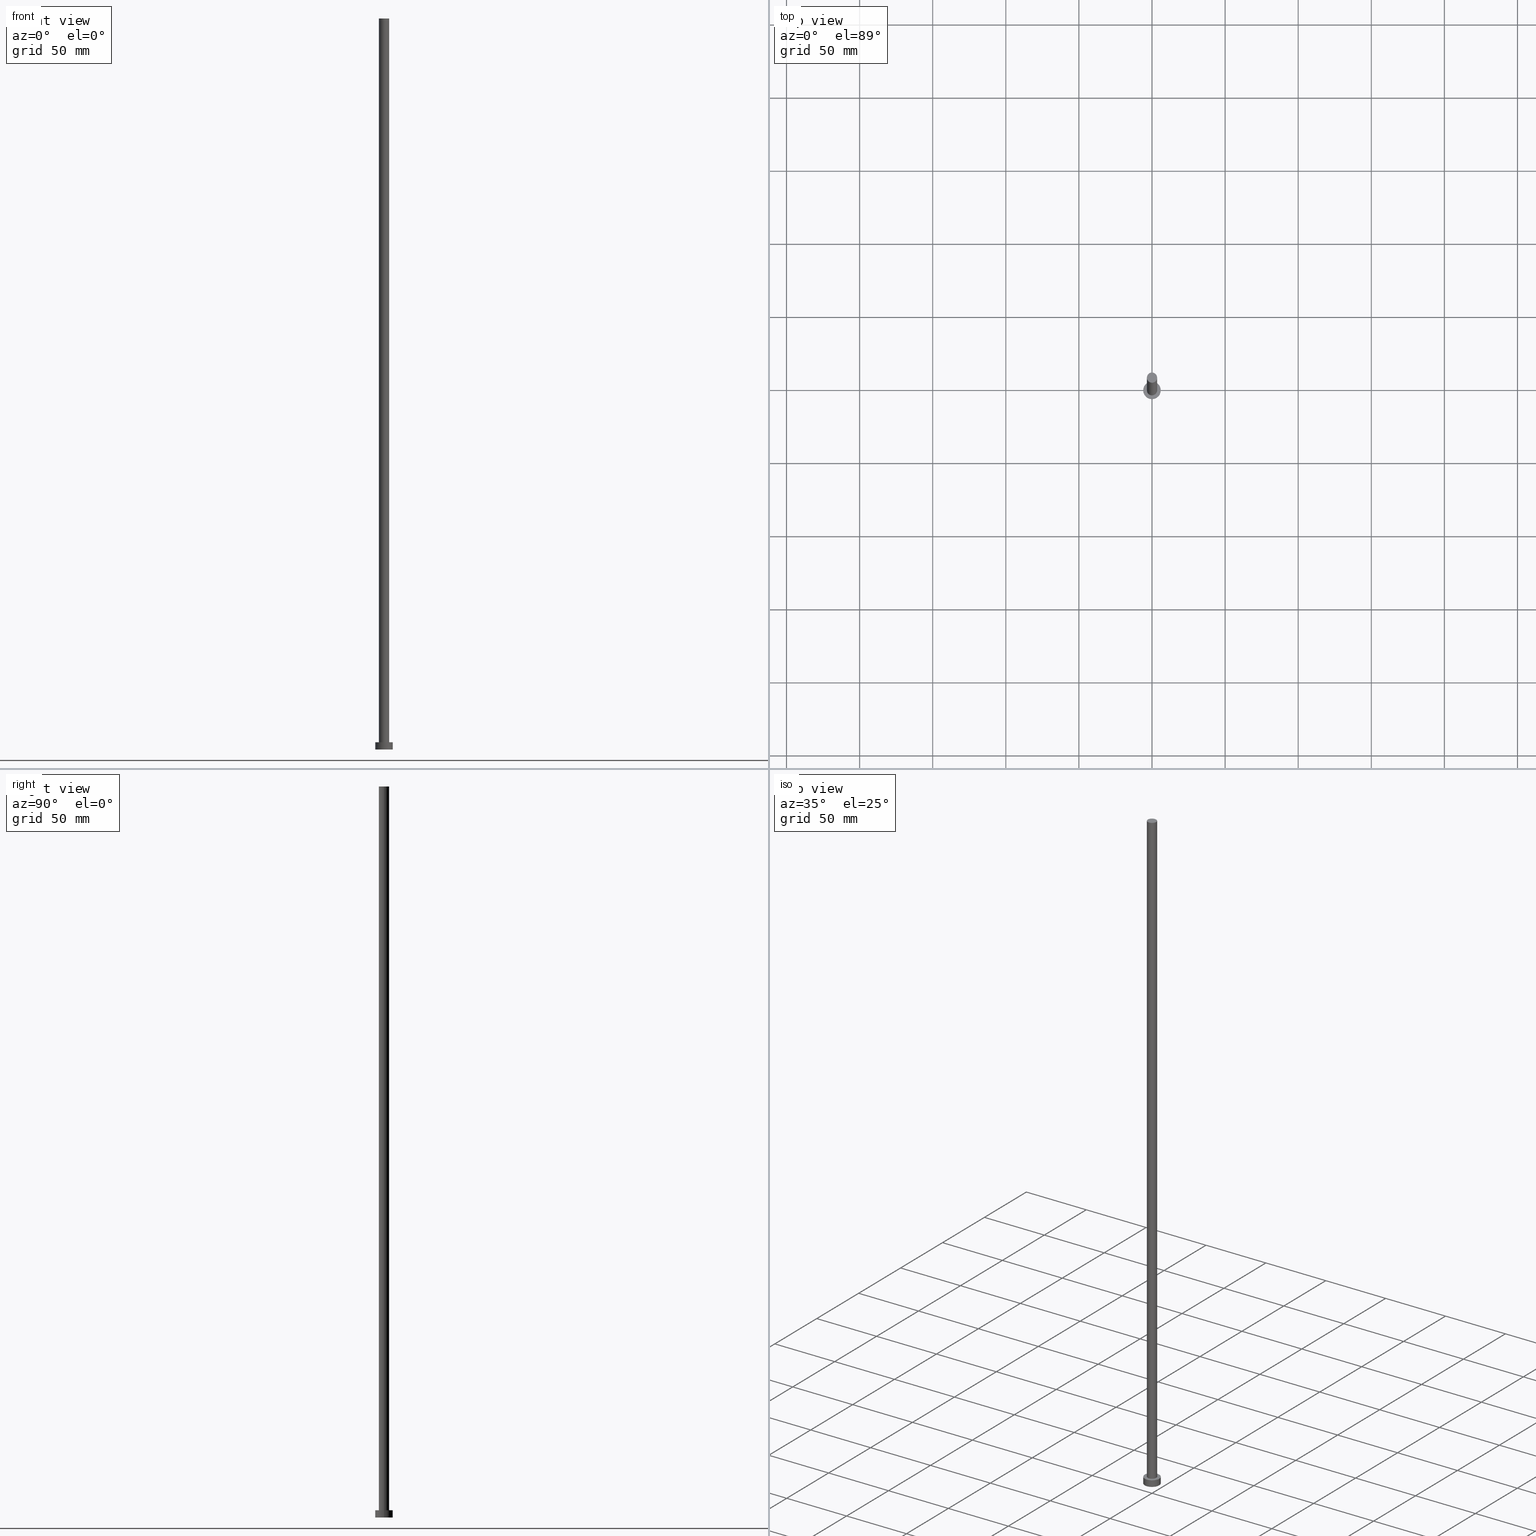
[diagram: canonical four-view strip — front | top / right | iso, engineering-drawing reading convention]
A machine part, canonical four-view strip (front | top / right | iso — engineering-drawing reading convention). The complete STEP part file that produces these views, byte-faithful:
ISO-10303-21;
HEADER;
FILE_DESCRIPTION (( 'STEP AP203' ),
    '1' );
FILE_NAME ('69ee.STEP',
    '2023-02-12T11:58:47',
    ( '' ),
    ( '' ),
    'SwSTEP 2.0',
    'SolidWorks 2019',
    '' );
FILE_SCHEMA (( 'CONFIG_CONTROL_DESIGN' ));
ENDSEC;

DATA;
#1 = ORIENTED_EDGE ( 'NONE', *, *, #71, .T. ) ;
#2 =( NAMED_UNIT ( * ) SI_UNIT ( $, .STERADIAN. ) SOLID_ANGLE_UNIT ( ) );
#3 = AXIS2_PLACEMENT_3D ( 'NONE', #186, #220, #222 ) ;
#4 = DIRECTION ( 'NONE',  ( 1.000000000000000000, 0.000000000000000000, 0.000000000000000000 ) ) ;
#5 = PRODUCT_RELATED_PRODUCT_CATEGORY ( 'detail', '', ( #10 ) ) ;
#6 = SHAPE_DEFINITION_REPRESENTATION ( #185, #136 ) ;
#7 =( NAMED_UNIT ( * ) PLANE_ANGLE_UNIT ( ) SI_UNIT ( $, .RADIAN. ) );
#8 = AXIS2_PLACEMENT_3D ( 'NONE', #82, #101, #44 ) ;
#9 = CARTESIAN_POINT ( 'NONE',  ( 0.000000000000000000, 0.000000000000000000, 5.000000000000000000 ) ) ;
#10 = PRODUCT ( '69ee', '69ee', '', ( #84 ) ) ;
#11 = LOCAL_TIME ( 12, 58, 47.00000000000000000, #246 ) ;
#12 = DIRECTION ( 'NONE',  ( 0.000000000000000000, 0.000000000000000000, 1.000000000000000000 ) ) ;
#13 = DATE_TIME_ROLE ( 'creation_date' ) ;
#14 = AXIS2_PLACEMENT_3D ( 'NONE', #239, #12, #25 ) ;
#15 = PERSON_AND_ORGANIZATION_ROLE ( 'design_owner' ) ;
#16 = ADVANCED_FACE ( 'NONE', ( #238 ), #33, .T. ) ;
#17 = ORIENTED_EDGE ( 'NONE', *, *, #153, .T. ) ;
#18 = APPLICATION_CONTEXT ( 'configuration controlled 3d designs of mechanical parts and assemblies' ) ;
#19 = EDGE_CURVE ( 'NONE', #226, #97, #47, .T. ) ;
#20 = ORIENTED_EDGE ( 'NONE', *, *, #91, .T. ) ;
#21 = DIRECTION ( 'NONE',  ( 1.000000000000000000, 0.000000000000000000, 0.000000000000000000 ) ) ;
#22 = DIRECTION ( 'NONE',  ( -0.000000000000000000, -0.000000000000000000, -1.000000000000000000 ) ) ;
#23 = FACE_OUTER_BOUND ( 'NONE', #36, .T. ) ;
#24 = CARTESIAN_POINT ( 'NONE',  ( 0.000000000000000000, 0.000000000000000000, 0.000000000000000000 ) ) ;
#25 = DIRECTION ( 'NONE',  ( 1.000000000000000000, 0.000000000000000000, 0.000000000000000000 ) ) ;
#26 =( LENGTH_UNIT ( ) NAMED_UNIT ( * ) SI_UNIT ( .MILLI., .METRE. ) );
#27 = CYLINDRICAL_SURFACE ( 'NONE', #88, 3.500000000000000000 ) ;
#28 = CIRCLE ( 'NONE', #167, 6.000000000000000888 ) ;
#29 = CARTESIAN_POINT ( 'NONE',  ( 0.000000000000000000, 0.000000000000000000, 5.000000000000000000 ) ) ;
#30 = CC_DESIGN_PERSON_AND_ORGANIZATION_ASSIGNMENT ( #141, #182, ( #116 ) ) ;
#31 = CALENDAR_DATE ( 2023, 12, 2 ) ;
#32 = ORIENTED_EDGE ( 'NONE', *, *, #216, .T. ) ;
#33 = CYLINDRICAL_SURFACE ( 'NONE', #149, 3.500000000000000000 ) ;
#34 = LOCAL_TIME ( 12, 58, 47.00000000000000000, #210 ) ;
#35 = PERSON ( 'NEUR�EN�', 'NEUR�EN�', 'NEUR�EN�', ('NEUR�EN�'), ('NEUR�EN�'), ('NEUR�EN�') ) ;
#36 = EDGE_LOOP ( 'NONE', ( #1, #134 ) ) ;
#37 = VERTEX_POINT ( 'NONE', #49 ) ;
#38 = CARTESIAN_POINT ( 'NONE',  ( -6.000000000000000888, 0.000000000000000000, 5.000000000000000000 ) ) ;
#39 = ORIENTED_EDGE ( 'NONE', *, *, #208, .F. ) ;
#40 = DIRECTION ( 'NONE',  ( -0.000000000000000000, -0.000000000000000000, -1.000000000000000000 ) ) ;
#41 = DIRECTION ( 'NONE',  ( -1.000000000000000000, 0.000000000000000000, 0.000000000000000000 ) ) ;
#42 = EDGE_CURVE ( 'NONE', #111, #114, #207, .T. ) ;
#43 = CARTESIAN_POINT ( 'NONE',  ( 0.000000000000000000, 0.000000000000000000, 5.000000000000000000 ) ) ;
#44 = DIRECTION ( 'NONE',  ( 1.000000000000000000, 0.000000000000000000, 0.000000000000000000 ) ) ;
#45 = EDGE_CURVE ( 'NONE', #250, #37, #124, .T. ) ;
#46 = SECURITY_CLASSIFICATION_LEVEL ( 'unclassified' ) ;
#47 = CIRCLE ( 'NONE', #8, 3.500000000000000000 ) ;
#48 = CC_DESIGN_APPROVAL ( #54, ( #133 ) ) ;
#49 = CARTESIAN_POINT ( 'NONE',  ( -6.000000000000000888, 0.000000000000000000, 5.000000000000000000 ) ) ;
#50 = CALENDAR_DATE ( 2023, 12, 2 ) ;
#51 = CIRCLE ( 'NONE', #189, 3.500000000000000000 ) ;
#52 = PERSON_AND_ORGANIZATION_ROLE ( 'creator' ) ;
#53 = COORDINATED_UNIVERSAL_TIME_OFFSET ( 1, 0, .AHEAD. ) ;
#54 = APPROVAL ( #227, 'NEUR�EN�' ) ;
#55 = CARTESIAN_POINT ( 'NONE',  ( 6.000000000000000888, 7.347880794884120722E-16, 0.000000000000000000 ) ) ;
#56 = APPROVAL_DATE_TIME ( #242, #211 ) ;
#57 = CIRCLE ( 'NONE', #159, 3.500000000000000000 ) ;
#58 = APPLICATION_CONTEXT ( 'configuration controlled 3d designs of mechanical parts and assemblies' ) ;
#59 = CARTESIAN_POINT ( 'NONE',  ( -3.500000000000000000, 0.000000000000000000, 5.000000000000000000 ) ) ;
#60 = ORIENTED_EDGE ( 'NONE', *, *, #45, .T. ) ;
#61 = DIRECTION ( 'NONE',  ( 0.000000000000000000, 0.000000000000000000, 1.000000000000000000 ) ) ;
#62 = CARTESIAN_POINT ( 'NONE',  ( 6.000000000000000888, 7.347880794884120722E-16, 5.000000000000000000 ) ) ;
#63 = CARTESIAN_POINT ( 'NONE',  ( 3.500000000000000000, 4.286263797015736595E-16, 5.000000000000000000 ) ) ;
#64 = DIRECTION ( 'NONE',  ( 0.000000000000000000, 0.000000000000000000, 1.000000000000000000 ) ) ;
#65 = CIRCLE ( 'NONE', #128, 3.500000000000000000 ) ;
#66 = EDGE_CURVE ( 'NONE', #37, #250, #113, .T. ) ;
#67 = CARTESIAN_POINT ( 'NONE',  ( 0.000000000000000000, 0.000000000000000000, 500.0000000000000000 ) ) ;
#68 = PERSON_AND_ORGANIZATION ( #35, #129 ) ;
#69 = UNCERTAINTY_MEASURE_WITH_UNIT (LENGTH_MEASURE( 1.000000000000000082E-05 ), #26, 'distance_accuracy_value', 'NONE');
#70 = COORDINATED_UNIVERSAL_TIME_OFFSET ( 1, 0, .AHEAD. ) ;
#71 = EDGE_CURVE ( 'NONE', #97, #226, #65, .T. ) ;
#72 = APPROVAL_ROLE ( '' ) ;
#73 = PERSON_AND_ORGANIZATION ( #35, #129 ) ;
#74 = DIRECTION ( 'NONE',  ( 0.000000000000000000, 0.000000000000000000, 1.000000000000000000 ) ) ;
#75 = APPROVAL ( #110, 'NEUR�EN�' ) ;
#76 = CARTESIAN_POINT ( 'NONE',  ( -6.000000000000000888, 0.000000000000000000, 0.000000000000000000 ) ) ;
#77 = DIRECTION ( 'NONE',  ( -0.000000000000000000, -0.000000000000000000, -1.000000000000000000 ) ) ;
#78 = APPROVAL_PERSON_ORGANIZATION ( #214, #211, #72 ) ;
#79 = EDGE_LOOP ( 'NONE', ( #217, #201, #175, #32 ) ) ;
#80 = ADVANCED_FACE ( 'NONE', ( #122, #243 ), #142, .T. ) ;
#81 = DIRECTION ( 'NONE',  ( 1.000000000000000000, 0.000000000000000000, -0.000000000000000000 ) ) ;
#82 = CARTESIAN_POINT ( 'NONE',  ( 0.000000000000000000, 0.000000000000000000, 500.0000000000000000 ) ) ;
#83 = LOCAL_TIME ( 12, 58, 47.00000000000000000, #70 ) ;
#84 = MECHANICAL_CONTEXT ( 'NONE', #18, 'mechanical' ) ;
#85 = APPROVAL_DATE_TIME ( #224, #54 ) ;
#86 = ADVANCED_FACE ( 'NONE', ( #99 ), #203, .T. ) ;
#87 = DIRECTION ( 'NONE',  ( -0.000000000000000000, -0.000000000000000000, -1.000000000000000000 ) ) ;
#88 = AXIS2_PLACEMENT_3D ( 'NONE', #179, #255, #163 ) ;
#89 = MANIFOLD_SOLID_BREP ( 'P�idat vysunut�m3', #234 ) ;
#90 = DIRECTION ( 'NONE',  ( -1.000000000000000000, 0.000000000000000000, 0.000000000000000000 ) ) ;
#91 = EDGE_CURVE ( 'NONE', #154, #150, #51, .T. ) ;
#92 = AXIS2_PLACEMENT_3D ( 'NONE', #209, #106, #166 ) ;
#93 = APPLICATION_PROTOCOL_DEFINITION ( 'international standard', 'config_control_design', 1994, #58 ) ;
#94 = ORIENTED_EDGE ( 'NONE', *, *, #19, .F. ) ;
#95 = CC_DESIGN_DATE_AND_TIME_ASSIGNMENT ( #127, #104, ( #133 ) ) ;
#96 = LINE ( 'NONE', #251, #241 ) ;
#97 = VERTEX_POINT ( 'NONE', #202 ) ;
#98 = PERSON_AND_ORGANIZATION ( #35, #129 ) ;
#99 = FACE_OUTER_BOUND ( 'NONE', #79, .T. ) ;
#100 = AXIS2_PLACEMENT_3D ( 'NONE', #137, #117, #81 ) ;
#101 = DIRECTION ( 'NONE',  ( 0.000000000000000000, 0.000000000000000000, 1.000000000000000000 ) ) ;
#102 = EDGE_CURVE ( 'NONE', #250, #111, #178, .T. ) ;
#103 = DIRECTION ( 'NONE',  ( 0.000000000000000000, 0.000000000000000000, 1.000000000000000000 ) ) ;
#104 = DATE_TIME_ROLE ( 'classification_date' ) ;
#105 = ADVANCED_FACE ( 'NONE', ( #172 ), #151, .F. ) ;
#106 = DIRECTION ( 'NONE',  ( 0.000000000000000000, 0.000000000000000000, 1.000000000000000000 ) ) ;
#107 = APPROVAL_ROLE ( '' ) ;
#108 =( GEOMETRIC_REPRESENTATION_CONTEXT ( 3 ) GLOBAL_UNCERTAINTY_ASSIGNED_CONTEXT ( ( #69 ) ) GLOBAL_UNIT_ASSIGNED_CONTEXT ( ( #26, #7, #2 ) ) REPRESENTATION_CONTEXT ( 'NONE', 'WORKASPACE' ) );
#109 = APPROVAL_DATE_TIME ( #212, #75 ) ;
#110 = APPROVAL_STATUS ( 'not_yet_approved' ) ;
#111 = VERTEX_POINT ( 'NONE', #55 ) ;
#112 = LINE ( 'NONE', #38, #132 ) ;
#113 = CIRCLE ( 'NONE', #14, 6.000000000000000888 ) ;
#114 = VERTEX_POINT ( 'NONE', #76 ) ;
#115 = CC_DESIGN_DATE_AND_TIME_ASSIGNMENT ( #187, #13, ( #249 ) ) ;
#116 = PRODUCT_DEFINITION_FORMATION_WITH_SPECIFIED_SOURCE ( 'LIBOVOLN�', '', #10, .NOT_KNOWN. ) ;
#117 = DIRECTION ( 'NONE',  ( 0.000000000000000000, 0.000000000000000000, 1.000000000000000000 ) ) ;
#118 = EDGE_LOOP ( 'NONE', ( #160, #156, #236, #39 ) ) ;
#119 = DIRECTION ( 'NONE',  ( -0.000000000000000000, -0.000000000000000000, -1.000000000000000000 ) ) ;
#120 = DIRECTION ( 'NONE',  ( 0.000000000000000000, 0.000000000000000000, 1.000000000000000000 ) ) ;
#121 = DIRECTION ( 'NONE',  ( -0.000000000000000000, -0.000000000000000000, -1.000000000000000000 ) ) ;
#122 = FACE_BOUND ( 'NONE', #235, .T. ) ;
#123 = PERSON_AND_ORGANIZATION ( #35, #129 ) ;
#124 = CIRCLE ( 'NONE', #3, 6.000000000000000888 ) ;
#125 = APPROVAL_PERSON_ORGANIZATION ( #171, #75, #244 ) ;
#126 = CARTESIAN_POINT ( 'NONE',  ( 0.000000000000000000, 0.000000000000000000, 500.0000000000000000 ) ) ;
#127 = DATE_AND_TIME ( #50, #83 ) ;
#128 = AXIS2_PLACEMENT_3D ( 'NONE', #126, #170, #183 ) ;
#129 = ORGANIZATION ( 'NEUR�EN�', 'NEUR�EN�', '' ) ;
#130 = CALENDAR_DATE ( 2023, 12, 2 ) ;
#131 = ADVANCED_FACE ( 'NONE', ( #155 ), #197, .T. ) ;
#132 = VECTOR ( 'NONE', #190, 1000.000000000000000 ) ;
#133 = SECURITY_CLASSIFICATION ( '', '', #46 ) ;
#134 = ORIENTED_EDGE ( 'NONE', *, *, #19, .T. ) ;
#135 = ORIENTED_EDGE ( 'NONE', *, *, #153, .F. ) ;
#136 = ADVANCED_BREP_SHAPE_REPRESENTATION ( '69ee', ( #89, #253 ), #108 ) ;
#137 = CARTESIAN_POINT ( 'NONE',  ( 0.000000000000000000, 0.000000000000000000, 500.0000000000000000 ) ) ;
#138 = ORIENTED_EDGE ( 'NONE', *, *, #200, .F. ) ;
#139 = LINE ( 'NONE', #237, #231 ) ;
#140 = PLANE ( 'NONE',  #100 ) ;
#141 = PERSON_AND_ORGANIZATION ( #35, #129 ) ;
#142 = PLANE ( 'NONE',  #144 ) ;
#143 = CC_DESIGN_PERSON_AND_ORGANIZATION_ASSIGNMENT ( #123, #206, ( #133 ) ) ;
#144 = AXIS2_PLACEMENT_3D ( 'NONE', #29, #103, #181 ) ;
#145 = DIRECTION ( 'NONE',  ( 1.000000000000000000, 0.000000000000000000, -0.000000000000000000 ) ) ;
#146 = LOCAL_TIME ( 12, 58, 47.00000000000000000, #53 ) ;
#147 = CC_DESIGN_APPROVAL ( #75, ( #116 ) ) ;
#148 = CARTESIAN_POINT ( 'NONE',  ( 6.000000000000000888, 7.347880794884120722E-16, 5.000000000000000000 ) ) ;
#149 = AXIS2_PLACEMENT_3D ( 'NONE', #67, #121, #90 ) ;
#150 = VERTEX_POINT ( 'NONE', #63 ) ;
#151 = PLANE ( 'NONE',  #158 ) ;
#152 = APPROVAL_PERSON_ORGANIZATION ( #245, #54, #107 ) ;
#153 = EDGE_CURVE ( 'NONE', #150, #154, #57, .T. ) ;
#154 = VERTEX_POINT ( 'NONE', #59 ) ;
#155 = FACE_OUTER_BOUND ( 'NONE', #118, .T. ) ;
#156 = ORIENTED_EDGE ( 'NONE', *, *, #102, .T. ) ;
#157 = CARTESIAN_POINT ( 'NONE',  ( 0.000000000000000000, 0.000000000000000000, 5.000000000000000000 ) ) ;
#158 = AXIS2_PLACEMENT_3D ( 'NONE', #230, #74, #145 ) ;
#159 = AXIS2_PLACEMENT_3D ( 'NONE', #157, #61, #21 ) ;
#160 = ORIENTED_EDGE ( 'NONE', *, *, #45, .F. ) ;
#161 = CARTESIAN_POINT ( 'NONE',  ( 3.500000000000000000, 4.286263797015736595E-16, 500.0000000000000000 ) ) ;
#162 = LOCAL_TIME ( 12, 58, 47.00000000000000000, #229 ) ;
#163 = DIRECTION ( 'NONE',  ( -1.000000000000000000, 0.000000000000000000, 0.000000000000000000 ) ) ;
#164 = APPLICATION_PROTOCOL_DEFINITION ( 'international standard', 'config_control_design', 1994, #18 ) ;
#165 = AXIS2_PLACEMENT_3D ( 'NONE', #9, #87, #205 ) ;
#166 = DIRECTION ( 'NONE',  ( 1.000000000000000000, 0.000000000000000000, 0.000000000000000000 ) ) ;
#167 = AXIS2_PLACEMENT_3D ( 'NONE', #24, #120, #199 ) ;
#168 = CC_DESIGN_PERSON_AND_ORGANIZATION_ASSIGNMENT ( #68, #15, ( #10 ) ) ;
#169 = CALENDAR_DATE ( 2023, 12, 2 ) ;
#170 = DIRECTION ( 'NONE',  ( 0.000000000000000000, 0.000000000000000000, 1.000000000000000000 ) ) ;
#171 = PERSON_AND_ORGANIZATION ( #35, #129 ) ;
#172 = FACE_OUTER_BOUND ( 'NONE', #233, .T. ) ;
#173 = ORIENTED_EDGE ( 'NONE', *, *, #42, .F. ) ;
#174 = ORIENTED_EDGE ( 'NONE', *, *, #247, .F. ) ;
#175 = ORIENTED_EDGE ( 'NONE', *, *, #208, .T. ) ;
#176 = ORIENTED_EDGE ( 'NONE', *, *, #71, .F. ) ;
#177 = ADVANCED_FACE ( 'NONE', ( #23 ), #140, .T. ) ;
#178 = LINE ( 'NONE', #148, #195 ) ;
#179 = CARTESIAN_POINT ( 'NONE',  ( 0.000000000000000000, 0.000000000000000000, 500.0000000000000000 ) ) ;
#180 = CARTESIAN_POINT ( 'NONE',  ( 0.000000000000000000, 0.000000000000000000, 0.000000000000000000 ) ) ;
#181 = DIRECTION ( 'NONE',  ( 1.000000000000000000, 0.000000000000000000, -0.000000000000000000 ) ) ;
#182 = PERSON_AND_ORGANIZATION_ROLE ( 'creator' ) ;
#183 = DIRECTION ( 'NONE',  ( 1.000000000000000000, 0.000000000000000000, 0.000000000000000000 ) ) ;
#184 = APPROVAL_STATUS ( 'not_yet_approved' ) ;
#185 = PRODUCT_DEFINITION_SHAPE ( 'NONE', 'NONE',  #249 ) ;
#186 = CARTESIAN_POINT ( 'NONE',  ( 0.000000000000000000, 0.000000000000000000, 5.000000000000000000 ) ) ;
#187 = DATE_AND_TIME ( #213, #34 ) ;
#188 = CC_DESIGN_PERSON_AND_ORGANIZATION_ASSIGNMENT ( #98, #225, ( #116 ) ) ;
#189 = AXIS2_PLACEMENT_3D ( 'NONE', #43, #254, #4 ) ;
#190 = DIRECTION ( 'NONE',  ( -0.000000000000000000, -0.000000000000000000, -1.000000000000000000 ) ) ;
#191 = CC_DESIGN_SECURITY_CLASSIFICATION ( #133, ( #116 ) ) ;
#192 = ORIENTED_EDGE ( 'NONE', *, *, #66, .T. ) ;
#193 = EDGE_LOOP ( 'NONE', ( #94, #252, #17, #174 ) ) ;
#194 = CARTESIAN_POINT ( 'NONE',  ( 0.000000000000000000, 0.000000000000000000, 5.000000000000000000 ) ) ;
#195 = VECTOR ( 'NONE', #77, 1000.000000000000000 ) ;
#196 = EDGE_LOOP ( 'NONE', ( #138, #176, #232, #20 ) ) ;
#197 = CYLINDRICAL_SURFACE ( 'NONE', #215, 6.000000000000000888 ) ;
#198 = ORIENTED_EDGE ( 'NONE', *, *, #91, .F. ) ;
#199 = DIRECTION ( 'NONE',  ( 1.000000000000000000, 0.000000000000000000, 0.000000000000000000 ) ) ;
#200 = EDGE_CURVE ( 'NONE', #226, #150, #96, .T. ) ;
#201 = ORIENTED_EDGE ( 'NONE', *, *, #66, .F. ) ;
#202 = CARTESIAN_POINT ( 'NONE',  ( -3.500000000000000000, 0.000000000000000000, 500.0000000000000000 ) ) ;
#203 = CYLINDRICAL_SURFACE ( 'NONE', #165, 6.000000000000000888 ) ;
#204 = ADVANCED_FACE ( 'NONE', ( #221 ), #27, .T. ) ;
#205 = DIRECTION ( 'NONE',  ( -1.000000000000000000, 0.000000000000000000, 0.000000000000000000 ) ) ;
#206 = PERSON_AND_ORGANIZATION_ROLE ( 'classification_officer' ) ;
#207 = CIRCLE ( 'NONE', #92, 6.000000000000000888 ) ;
#208 = EDGE_CURVE ( 'NONE', #37, #114, #112, .T. ) ;
#209 = CARTESIAN_POINT ( 'NONE',  ( 0.000000000000000000, 0.000000000000000000, 0.000000000000000000 ) ) ;
#210 = COORDINATED_UNIVERSAL_TIME_OFFSET ( 1, 0, .AHEAD. ) ;
#211 = APPROVAL ( #184, 'NEUR�EN�' ) ;
#212 = DATE_AND_TIME ( #130, #146 ) ;
#213 = CALENDAR_DATE ( 2023, 12, 2 ) ;
#214 = PERSON_AND_ORGANIZATION ( #35, #129 ) ;
#215 = AXIS2_PLACEMENT_3D ( 'NONE', #194, #40, #41 ) ;
#216 = EDGE_CURVE ( 'NONE', #114, #111, #28, .T. ) ;
#217 = ORIENTED_EDGE ( 'NONE', *, *, #102, .F. ) ;
#218 = CC_DESIGN_PERSON_AND_ORGANIZATION_ASSIGNMENT ( #73, #52, ( #249 ) ) ;
#219 = EDGE_LOOP ( 'NONE', ( #192, #60 ) ) ;
#220 = DIRECTION ( 'NONE',  ( 0.000000000000000000, 0.000000000000000000, 1.000000000000000000 ) ) ;
#221 = FACE_OUTER_BOUND ( 'NONE', #196, .T. ) ;
#222 = DIRECTION ( 'NONE',  ( 1.000000000000000000, 0.000000000000000000, 0.000000000000000000 ) ) ;
#223 = DIRECTION ( 'NONE',  ( 1.000000000000000000, 0.000000000000000000, 0.000000000000000000 ) ) ;
#224 = DATE_AND_TIME ( #31, #162 ) ;
#225 = PERSON_AND_ORGANIZATION_ROLE ( 'design_supplier' ) ;
#226 = VERTEX_POINT ( 'NONE', #161 ) ;
#227 = APPROVAL_STATUS ( 'not_yet_approved' ) ;
#228 = CC_DESIGN_APPROVAL ( #211, ( #249 ) ) ;
#229 = COORDINATED_UNIVERSAL_TIME_OFFSET ( 1, 0, .AHEAD. ) ;
#230 = CARTESIAN_POINT ( 'NONE',  ( 0.000000000000000000, 0.000000000000000000, 0.000000000000000000 ) ) ;
#231 = VECTOR ( 'NONE', #22, 1000.000000000000000 ) ;
#232 = ORIENTED_EDGE ( 'NONE', *, *, #247, .T. ) ;
#233 = EDGE_LOOP ( 'NONE', ( #248, #173 ) ) ;
#234 = CLOSED_SHELL ( 'NONE', ( #16, #131, #86, #80, #105, #204, #177 ) ) ;
#235 = EDGE_LOOP ( 'NONE', ( #198, #135 ) ) ;
#236 = ORIENTED_EDGE ( 'NONE', *, *, #42, .T. ) ;
#237 = CARTESIAN_POINT ( 'NONE',  ( -3.500000000000000000, 0.000000000000000000, 500.0000000000000000 ) ) ;
#238 = FACE_OUTER_BOUND ( 'NONE', #193, .T. ) ;
#239 = CARTESIAN_POINT ( 'NONE',  ( 0.000000000000000000, 0.000000000000000000, 5.000000000000000000 ) ) ;
#240 = DESIGN_CONTEXT ( 'detailed design', #58, 'design' ) ;
#241 = VECTOR ( 'NONE', #119, 1000.000000000000000 ) ;
#242 = DATE_AND_TIME ( #169, #11 ) ;
#243 = FACE_OUTER_BOUND ( 'NONE', #219, .T. ) ;
#244 = APPROVAL_ROLE ( '' ) ;
#245 = PERSON_AND_ORGANIZATION ( #35, #129 ) ;
#246 = COORDINATED_UNIVERSAL_TIME_OFFSET ( 1, 0, .AHEAD. ) ;
#247 = EDGE_CURVE ( 'NONE', #97, #154, #139, .T. ) ;
#248 = ORIENTED_EDGE ( 'NONE', *, *, #216, .F. ) ;
#249 = PRODUCT_DEFINITION ( 'NEZN�M�', '', #116, #240 ) ;
#250 = VERTEX_POINT ( 'NONE', #62 ) ;
#251 = CARTESIAN_POINT ( 'NONE',  ( 3.500000000000000000, 4.286263797015736595E-16, 500.0000000000000000 ) ) ;
#252 = ORIENTED_EDGE ( 'NONE', *, *, #200, .T. ) ;
#253 = AXIS2_PLACEMENT_3D ( 'NONE', #180, #64, #223 ) ;
#254 = DIRECTION ( 'NONE',  ( 0.000000000000000000, 0.000000000000000000, 1.000000000000000000 ) ) ;
#255 = DIRECTION ( 'NONE',  ( -0.000000000000000000, -0.000000000000000000, -1.000000000000000000 ) ) ;
ENDSEC;
END-ISO-10303-21;
